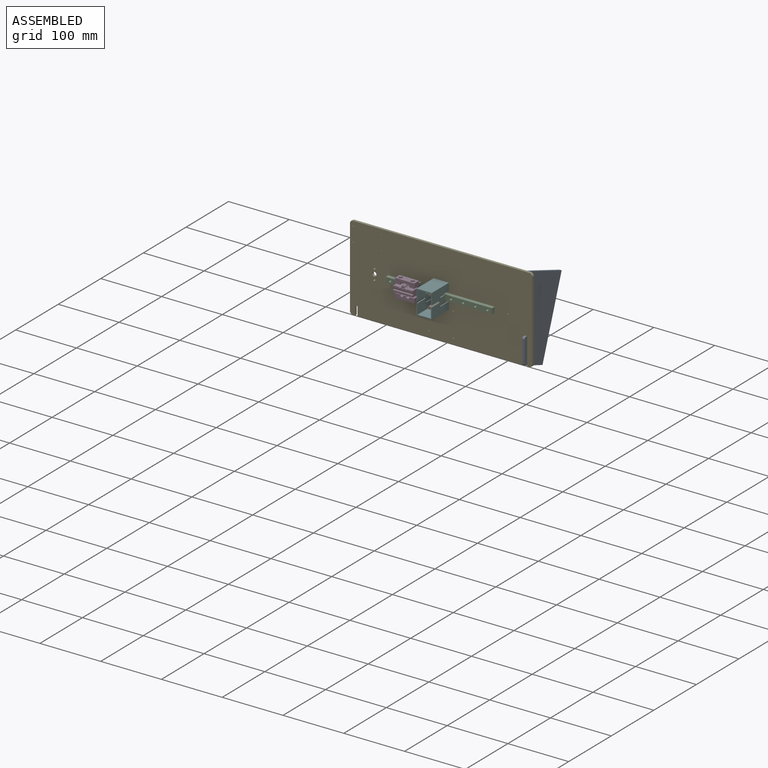
[diagram: assembled view]
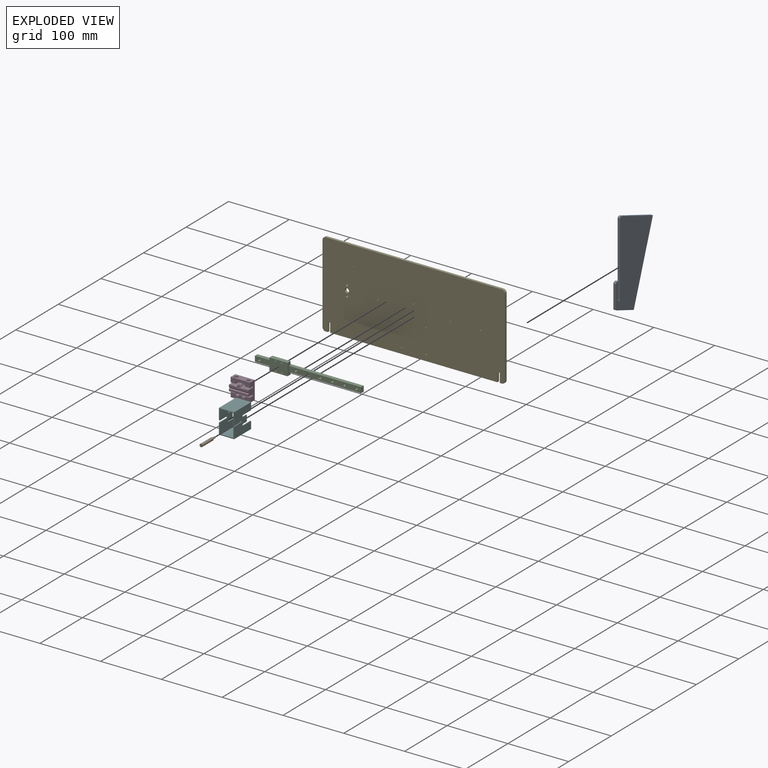
[diagram: exploded view]
GUIDED TOUR — MATED ASSEMBLY WITH SUBASSEMBLIES (Onshape document 30856ecc9b5a88bcb9cef74d, AutoMate assembly 30856ecc9b5a88bcb9cef74d_fe5a6556301621996acbb05d_f79fbb6f6f6875864b22d463_default)

This assembly has 8 component occurrences arranged in 7 top-level units: 6 individual components plus 1 subassembly (S0). The tour has two levels: first the top level, where each subassembly is treated as one rigid unit; then each subassembly is toured internally in its own section (nesting deeper than one subassembly level is flattened into its subassembly's section).

Components are labeled P0..P7 across the whole record; subassembly units are labeled S0..S0. A mate is a constraint between two units; its type names the relative motion it leaves free:
  CYLINDRICAL — leaves both rotation about and translation along the listed axis free,
  FASTENED — locks the two components together rigidly (no relative motion),
  PLANAR — leaves sliding in the plane through the listed point (normal = the listed direction) and rotation about that normal free,
  SLIDER — leaves translation along the listed axis free.
Axis/direction vectors are unit vectors and 'through' points are millimeter coordinates, both in the assembly's world frame.

TOP-LEVEL MATES (between units; each subassembly's internal mates are listed in its own section)
  1. PLANAR "Planar 2": P4 <-> S0, direction (0.000, 1.000, 0.000) through (-46.10, -9.00, -0.02) mm
  2. FASTENED "Fastened 2": P7 <-> P5, direction (0.000, 1.000, 0.000) through (0.00, 4.00, 10.00) mm
  3. PLANAR "Planar 5": P0 <-> P5, direction (0.000, 0.000, 1.000) through (139.42, 2.00, -55.00) mm
  4. CYLINDRICAL "Cylindrical 2": P5 <-> S0, axis (0.000, -1.000, 0.000) through (-60.00, 0.00, 0.00) mm
  5. CYLINDRICAL "Cylindrical 4": P4 <-> S0, axis (0.000, -1.000, 0.000) through (-51.10, -10.00, -7.50) mm
  6. PLANAR "Planar 1": S0 <-> P5, direction (0.000, 1.000, 0.000) through (-20.00, 0.00, 0.00) mm
  7. CYLINDRICAL "Cylindrical 3": P4 <-> S0, axis (0.000, 1.000, 0.000) through (-41.10, -9.00, 7.50) mm
  8. CYLINDRICAL "Cylindrical 1": S0 <-> P5, axis (0.000, 1.000, 0.000) through (0.00, 0.00, 0.00) mm
  9. FASTENED "Fastened 3": P1 <-> P5, direction (0.000, 1.000, 0.000) through (0.00, 4.00, -10.00) mm
  10. PLANAR "Planar 3": P6 <-> P5, direction (0.000, 1.000, 0.000) through (7.77, 0.00, -14.96) mm
  11. PLANAR "Planar 4": P0 <-> P5, direction (0.000, -1.000, 0.000) through (139.42, 4.00, 5.36) mm

TOP-LEVEL ASSEMBLY ORDER
  1. P7 — the base component [order verified]
  2. P5 [order verified]
  3. P1 [order verified]
  4. S0 [order verified]
  5. P4 [order verified]
  6. P6 [order verified]
  7. P0 [order verified]
Order-tag legend:
  [order verified] — this step's position reverses a verified removal order: the component was checked to insert without passing through the ones already placed.

Of the 8 component occurrences, 6 carry the full construction recipe — the FeatureScript program that regenerates the part's solid from scratch; the rest are supplied as boundary geometry only. Each toured unit is shown spotlighted twice — assembled, then exploded with a leader line back to its socket (green = recipe-attached component, orange = geometry-only, blue = subassembly unit; the rest desaturated gray).
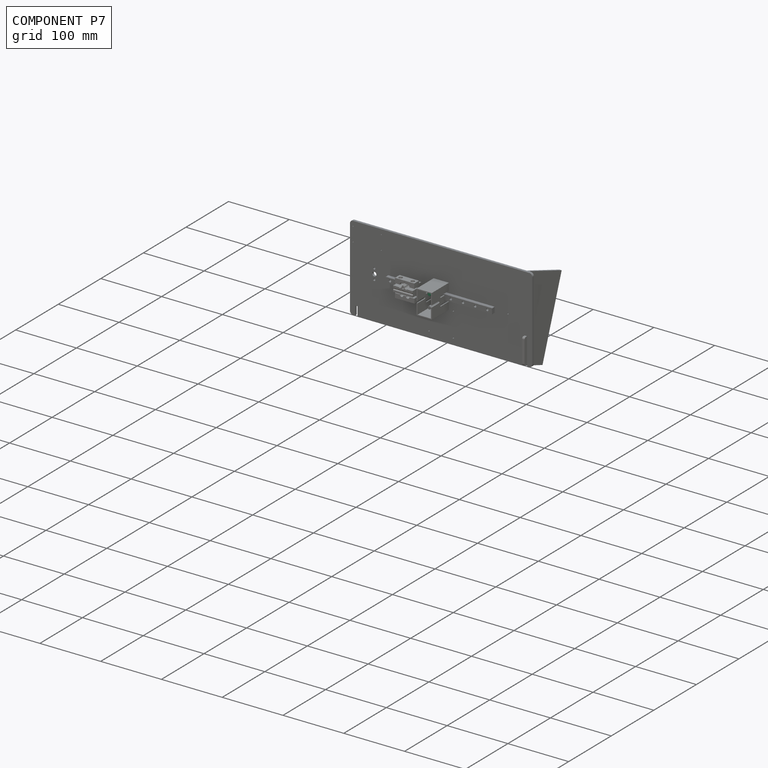
[diagram: component P7 — assembled]
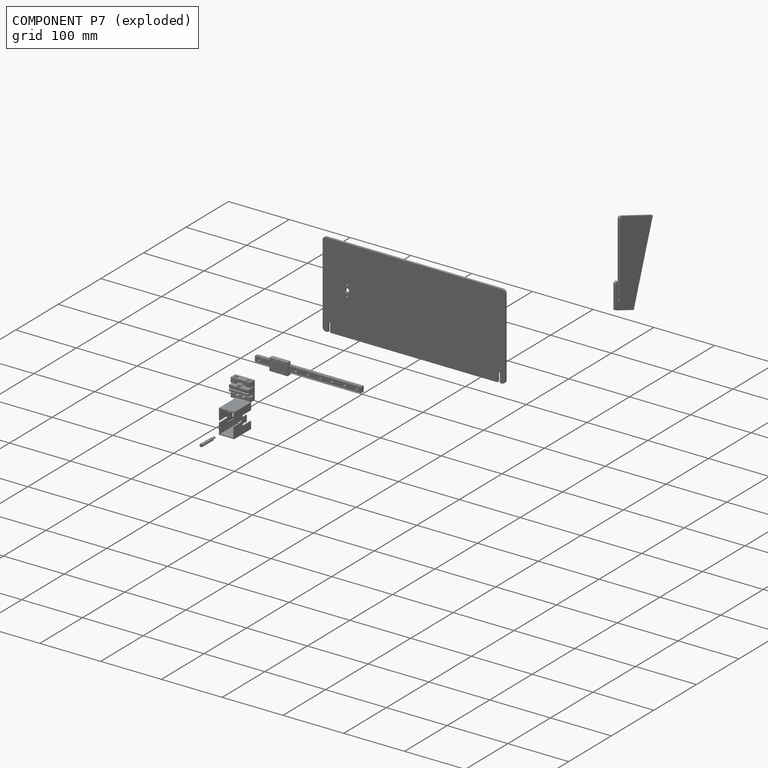
[diagram: component P7 — exploded]
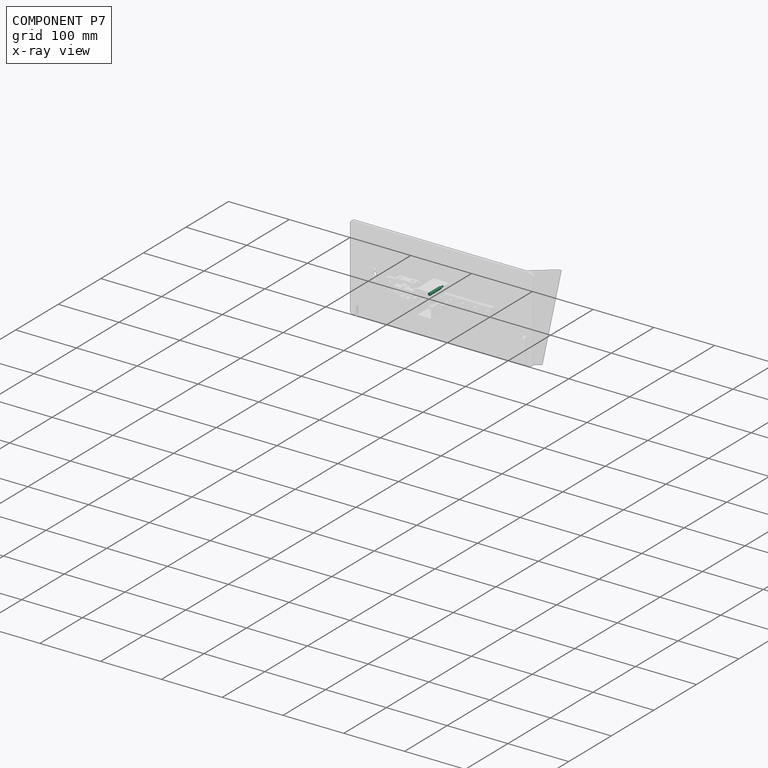
[diagram: component P7 — x-ray view]
COMPONENT P7 — same part as P1 (CADFS 00918046); its construction recipe is shown at P1.
Held by: FASTENED mate "Fastened 2" to P5.
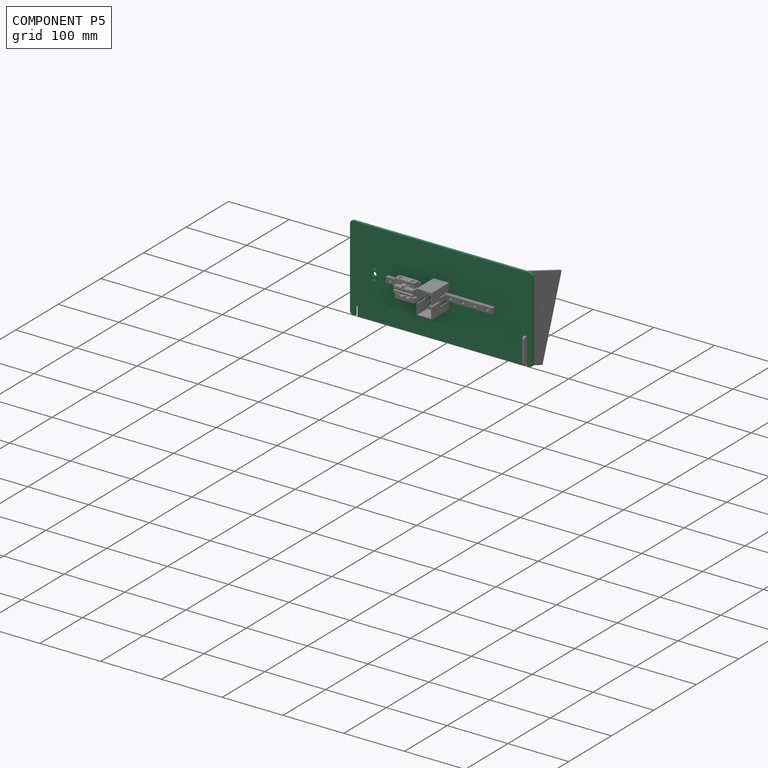
[diagram: component P5 — assembled]
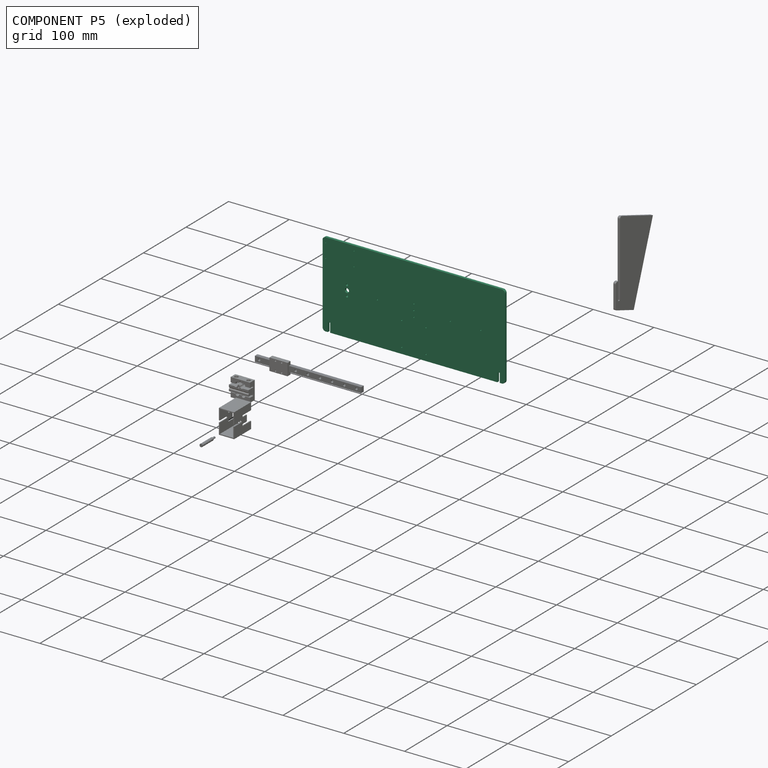
[diagram: component P5 — exploded]
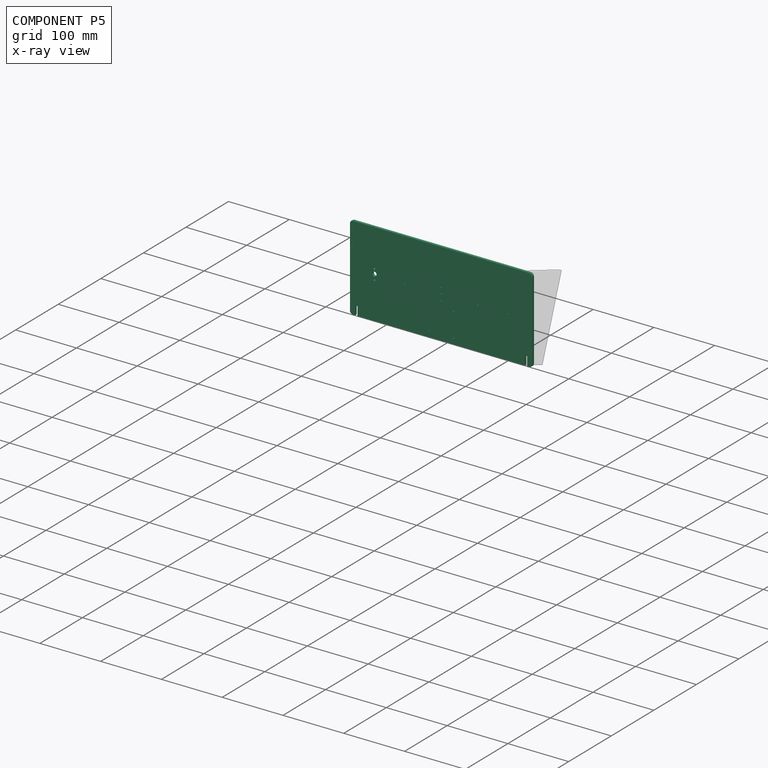
[diagram: component P5 — x-ray view]
COMPONENT P5 — recipe-attached (CADFS 00915259, mesh-verified: the recipe's output STEP matches this component's geometry to below the mesh-comparison resolution (tessellation chordal tolerance ~0.497 mm)).
Held by: FASTENED mate "Fastened 2" to P7; PLANAR mate "Planar 5" to P0; CYLINDRICAL mate "Cylindrical 2" to P2; PLANAR mate "Planar 1" to P2; CYLINDRICAL mate "Cylindrical 1" to P2; FASTENED mate "Fastened 3" to P1; PLANAR mate "Planar 3" to P6; PLANAR mate "Planar 4" to P0.
Construction recipe (FeatureScript — the CAD program that rebuilds this solid; sketch coordinates are in the units given by the * unit suffixes, e.g. mm):

FeatureScript 1511;
import(path : "onshape/std/geometry.fs", version : "1511.0");
import(path : "onshape/std/common.fs", version : "1511.0");
const mm = millimeter;
const VERTEX = EntityType.VERTEX;
const EDGE = EntityType.EDGE;
const FACE = EntityType.FACE;
const BODY = EntityType.BODY;
function v(x, y){return vector(x, y);}
function OD(order){return orderDisambiguation(order);}
function OSD(set){return originalSetDisambiguation(set);}
function TD(topology){return topologyDisambiguation(topology);}
function TDD(query){return trueDependencyDisambiguation(query);}
function sQuery(a, b, c) {return sketchEntityQuery(a, b, c);}

annotation { "Feature Type Name" : "Feature", "Feature Type Description" : "" }
export const myFeature = defineFeature(function(context is Context, id is Id, definition is map)
    precondition{}
    {
        {
            var Q0;
            Q0=qCreatedBy(makeId("Front.planeOp"),FACE);
            var sketch = newSketch(context, id + "F0", { "sketchPlane" : qUnion([Q0])});
            skLineSegment(sketch, "E0.bottom", {"start": v(-150, 70) * mm, "end": v(150, 70) * mm});
            skLineSegment(sketch, "E0.top", {"start": v(-150, -70) * mm, "end": v(150, -70) * mm});
            skLineSegment(sketch, "E0.left", {"start": v(-150, 70) * mm, "end": v(-150, -70) * mm});
            skLineSegment(sketch, "E0.right", {"start": v(150, 70) * mm, "end": v(150, -70) * mm});
            skSolve(sketch);
        }
        {
            var Q0;
            Q0=makeQuery(id+"F0.imprint","IMPRINT",FACE,{"disambiguationData":[TD([[makeQuery(id+"F0.imprint","IMPRINT",EDGE,{"derivedFrom":sQuery(id+"F0.wireOp",EDGE,"E0.bottom")}),-1.0]])]});
            extrude(context, id + "F1", {"entities" : qUnion([Q0]), "depth" : 4 * mm, "offsetDistance" : 25 * mm});
        }
        {
            var Q0;
            Q0=makeQuery(id+"F1.opExtrude","SWEPT_EDGE",EDGE,{"disambiguationData":[OSD([sQuery(id+"F0.wireOp",EDGE,"E0.bottom"),sQuery(id+"F0.wireOp",EDGE,"E0.right")])]});
            var Q1;
            Q1=makeQuery(id+"F1.opExtrude","SWEPT_EDGE",EDGE,{"disambiguationData":[OSD([sQuery(id+"F0.wireOp",EDGE,"E0.top"),sQuery(id+"F0.wireOp",EDGE,"E0.right")])]});
            var Q2;
            Q2=makeQuery(id+"F1.opExtrude","SWEPT_EDGE",EDGE,{"disambiguationData":[OSD([sQuery(id+"F0.wireOp",EDGE,"E0.top"),sQuery(id+"F0.wireOp",EDGE,"E0.left")])]});
            var Q3;
            Q3=makeQuery(id+"F1.opExtrude","SWEPT_EDGE",EDGE,{"disambiguationData":[OSD([sQuery(id+"F0.wireOp",EDGE,"E0.bottom"),sQuery(id+"F0.wireOp",EDGE,"E0.left")])]});
            fillet(context, id + "F2", {"entities" : qUnion([Q0, Q1, Q2, Q3]), "radius" : 5 * mm, "tangentPropagation" : true, "allowEdgeOverflow" : false});
        }
        {
            var Q0;
            Q0=makeQuery(id+"F1.opExtrude","CAP_FACE",FACE,{"disambiguationData":[OSD([sQuery(id+"F0.wireOp",EDGE,"E0.bottom"),sQuery(id+"F0.wireOp",EDGE,"E0.top"),sQuery(id+"F0.wireOp",EDGE,"E0.left"),sQuery(id+"F0.wireOp",EDGE,"E0.right")])],"isStart":false});
            var sketch = newSketch(context, id + "F3", { "sketchPlane" : qUnion([Q0])});
            skLineSegment(sketch, "E1", {"start": v(-157.8, 0) * mm, "end": v(143.36, 0) * mm, "construction": true});
            skCircle(sketch, "E2", {"center": v(0, 0) * mm, "radius": 1 * mm});
            skCircle(sketch, "E3", {"center": v(60, 0) * mm, "radius": 1 * mm});
            skCircle(sketch, "E4", {"center": v(-60, 0) * mm, "radius": 1 * mm});
            skCircle(sketch, "E5", {"center": v(-110, 0) * mm, "radius": 3.5 * mm});
            skCircle(sketch, "E6", {"center": v(110, 0) * mm, "radius": 1 * mm});
            skCircle(sketch, "E7", {"center": v(-110, 8.5) * mm, "radius": 1.75 * mm});
            skCircle(sketch, "E8", {"center": v(-110, -8.5) * mm, "radius": 1.75 * mm});
            skLineSegment(sketch, "E9.bottom", {"start": v(-141.5, -70) * mm, "end": v(-137.5, -70) * mm});
            skLineSegment(sketch, "E9.top", {"start": v(-141.5, -55) * mm, "end": v(-137.5, -55) * mm});
            skLineSegment(sketch, "E9.left", {"start": v(-141.5, -70) * mm, "end": v(-141.5, -55) * mm});
            skLineSegment(sketch, "E9.right", {"start": v(-137.5, -70) * mm, "end": v(-137.5, -55) * mm});
            skLineSegment(sketch, "E10.bottom", {"start": v(141.5, -70) * mm, "end": v(137.5, -70) * mm});
            skLineSegment(sketch, "E10.top", {"start": v(141.5, -55) * mm, "end": v(137.5, -55) * mm});
            skLineSegment(sketch, "E10.left", {"start": v(141.5, -70) * mm, "end": v(141.5, -55) * mm});
            skLineSegment(sketch, "E10.right", {"start": v(137.5, -70) * mm, "end": v(137.5, -55) * mm});
            skLineSegment(sketch, "E11.bottom", {"start": v(-145, 62) * mm, "end": v(-98.5, 62) * mm, "construction": true});
            skLineSegment(sketch, "E11.top", {"start": v(-145, 38.7) * mm, "end": v(-98.5, 38.7) * mm, "construction": true});
            skLineSegment(sketch, "E11.left", {"start": v(-145, 62) * mm, "end": v(-145, 38.7) * mm, "construction": true});
            skLineSegment(sketch, "E11.right", {"start": v(-98.5, 62) * mm, "end": v(-98.5, 38.7) * mm, "construction": true});
            skCircle(sketch, "E12", {"center": v(-145, 62) * mm, "radius": 0.75 * mm});
            skCircle(sketch, "E13", {"center": v(-98.5, 62) * mm, "radius": 0.75 * mm});
            skCircle(sketch, "E14", {"center": v(-145, 38.7) * mm, "radius": 0.75 * mm});
            skCircle(sketch, "E15", {"center": v(-98.5, 38.7) * mm, "radius": 0.75 * mm});
            skLineSegment(sketch, "E16.bottom", {"start": v(20, -20) * mm, "end": v(-20, -20) * mm, "construction": true});
            skLineSegment(sketch, "E16.top", {"start": v(20, -60) * mm, "end": v(-20, -60) * mm, "construction": true});
            skLineSegment(sketch, "E16.left", {"start": v(20, -20) * mm, "end": v(20, -60) * mm, "construction": true});
            skLineSegment(sketch, "E16.right", {"start": v(-20, -20) * mm, "end": v(-20, -60) * mm, "construction": true});
            skCircle(sketch, "E17", {"center": v(-20, -20) * mm, "radius": 1 * mm});
            skCircle(sketch, "E18", {"center": v(20, -20) * mm, "radius": 1 * mm});
            skCircle(sketch, "E19", {"center": v(20, -60) * mm, "radius": 1 * mm});
            skCircle(sketch, "E20", {"center": v(-20, -60) * mm, "radius": 1 * mm});
            skSolve(sketch);
        }
        {
            var Q0;
            Q0 = qSketchRegion(id + "F3", true);
            extrude(context, id + "F4", {"entities" : qUnion([Q0]), "operationType" : NewBodyOperationType.REMOVE, "endBound" : BoundingType.THROUGH_ALL, "oppositeDirection" : true, "depth" : 25 * mm, "offsetDistance" : 25 * mm});
        }
        {
            var Q0;
            Q0=makeQuery(id+"F1.opExtrude","CAP_FACE",FACE,{"disambiguationData":[OSD([sQuery(id+"F0.wireOp",EDGE,"E0.bottom"),sQuery(id+"F0.wireOp",EDGE,"E0.top"),sQuery(id+"F0.wireOp",EDGE,"E0.left"),sQuery(id+"F0.wireOp",EDGE,"E0.right")])],"isStart":false});
            var sketch = newSketch(context, id + "F5", { "sketchPlane" : qUnion([Q0])});
            skLineSegment(sketch, "E21", {"start": v(0, 35.63) * mm, "end": v(0, -33.32) * mm, "construction": true});
            skCircle(sketch, "E22", {"center": v(0, 10) * mm, "radius": 1 * mm});
            skCircle(sketch, "E23", {"center": v(0, -10) * mm, "radius": 1 * mm});
            skSolve(sketch);
        }
        {
            var Q0;
            Q0 = qSketchRegion(id + "F5", true);
            extrude(context, id + "F6", {"entities" : qUnion([Q0]), "operationType" : NewBodyOperationType.REMOVE, "endBound" : BoundingType.THROUGH_ALL, "oppositeDirection" : true, "depth" : 25 * mm, "offsetDistance" : 25 * mm});
        }
    });
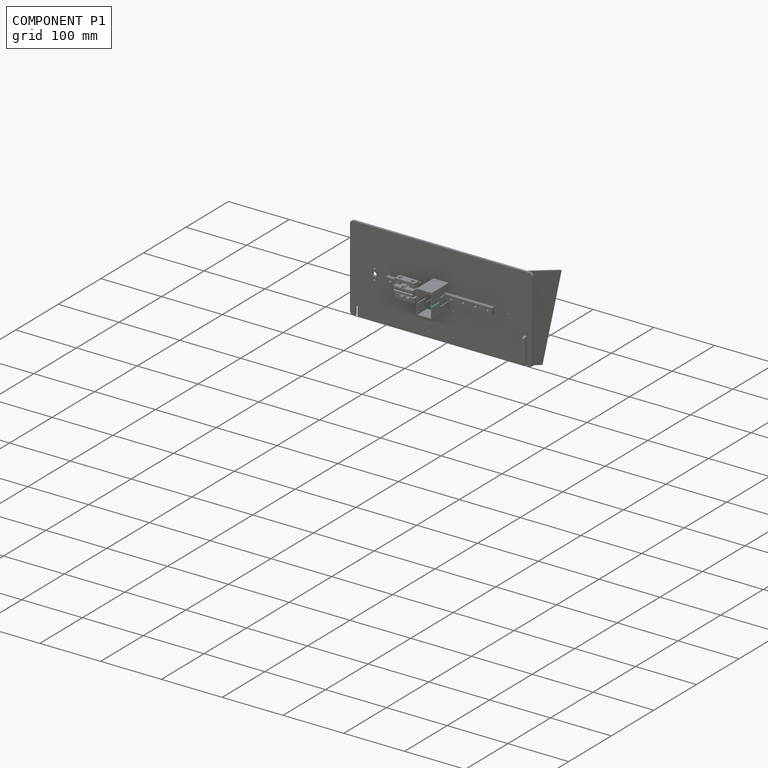
[diagram: component P1 — assembled]
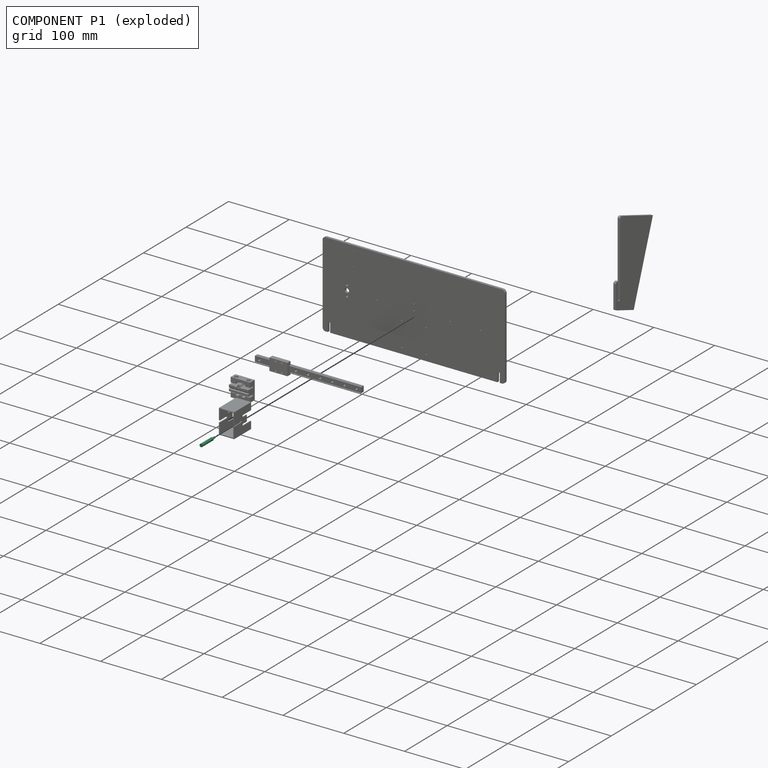
[diagram: component P1 — exploded]
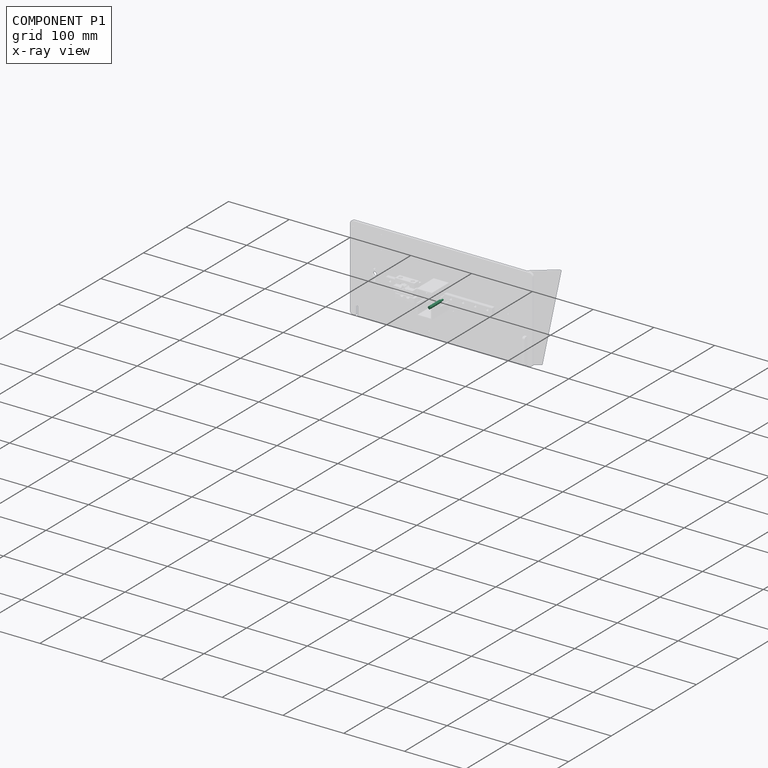
[diagram: component P1 — x-ray view]
COMPONENT P1 — recipe-attached (CADFS 00918046, mesh-verified: the recipe's output STEP matches this component's geometry to below the mesh-comparison resolution (tessellation chordal tolerance ~0.0492 mm)).
Held by: FASTENED mate "Fastened 3" to P5.
Construction recipe (FeatureScript — the CAD program that rebuilds this solid; sketch coordinates are in the units given by the * unit suffixes, e.g. mm):

FeatureScript 1511;
import(path : "onshape/std/geometry.fs", version : "1511.0");
import(path : "onshape/std/common.fs", version : "1511.0");
const mm = millimeter;
const VERTEX = EntityType.VERTEX;
const EDGE = EntityType.EDGE;
const FACE = EntityType.FACE;
const BODY = EntityType.BODY;
function v(x, y){return vector(x, y);}
function OD(order){return orderDisambiguation(order);}
function OSD(set){return originalSetDisambiguation(set);}
function TD(topology){return topologyDisambiguation(topology);}
function TDD(query){return trueDependencyDisambiguation(query);}
function sQuery(a, b, c) {return sketchEntityQuery(a, b, c);}

annotation { "Feature Type Name" : "Feature", "Feature Type Description" : "" }
export const myFeature = defineFeature(function(context is Context, id is Id, definition is map)
    precondition{}
    {
        {
            var Q0;
            Q0=qCreatedBy(makeId("Front.planeOp"),FACE);
            var sketch = newSketch(context, id + "F0", { "sketchPlane" : qUnion([Q0])});
            skCircle(sketch, "E0", {"center": v(0, 0) * mm, "radius": 2.5 * mm});
            skSolve(sketch);
        }
        {
            var Q0;
            Q0 = qSketchRegion(id + "F0", true);
            extrude(context, id + "F1", {"entities" : qUnion([Q0]), "depth" : 32 * mm, "offsetDistance" : 25 * mm});
        }
        {
            var Q0;
            Q0=makeQuery(id+"F1.opExtrude","CAP_FACE",FACE,{"disambiguationData":[OSD([sQuery(id+"F0.wireOp",EDGE,"E0")])],"isStart":true});
            var sketch = newSketch(context, id + "F2", { "sketchPlane" : qUnion([Q0])});
            skCircle(sketch, "E1", {"center": v(0, 0) * mm, "radius": 1.5 * mm});
            skSolve(sketch);
        }
        {
            var Q0;
            Q0=makeQuery(id+"F2.imprint","IMPRINT",FACE,{"disambiguationData":[TD([[makeQuery(id+"F2.imprint","IMPRINT",EDGE,{"derivedFrom":sQuery(id+"F2.wireOp",EDGE,"E1")}),-1.0]])]});
            extrude(context, id + "F3", {"entities" : qUnion([Q0]), "operationType" : NewBodyOperationType.REMOVE, "oppositeDirection" : true, "depth" : 6 * mm, "offsetDistance" : 25 * mm});
        }
    });
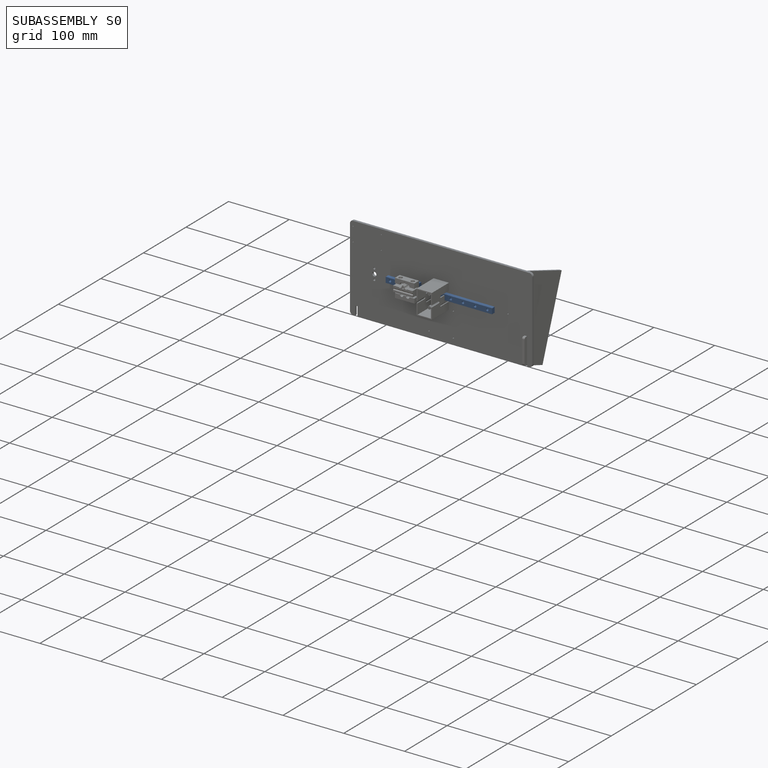
[diagram: subassembly S0 — assembled]
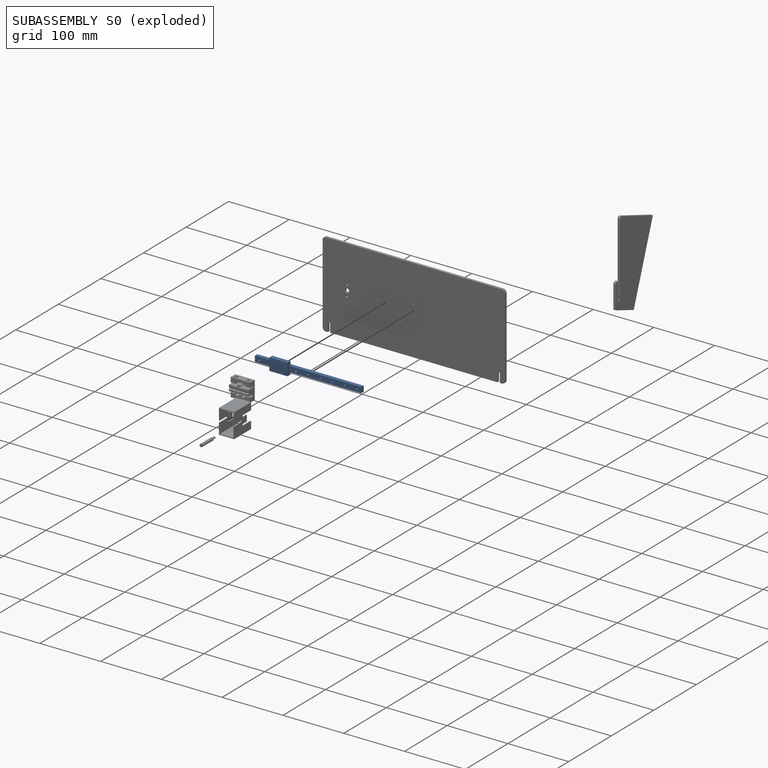
[diagram: subassembly S0 — exploded]
SUBASSEMBLY S0 — 2 components (P2, P3), of which 2 recipe-attached; toured below.
Held by: PLANAR mate "Planar 2" to P4; CYLINDRICAL mate "Cylindrical 2" to P5; CYLINDRICAL mate "Cylindrical 4" to P4; PLANAR mate "Planar 1" to P5; CYLINDRICAL mate "Cylindrical 3" to P4; CYLINDRICAL mate "Cylindrical 1" to P5.
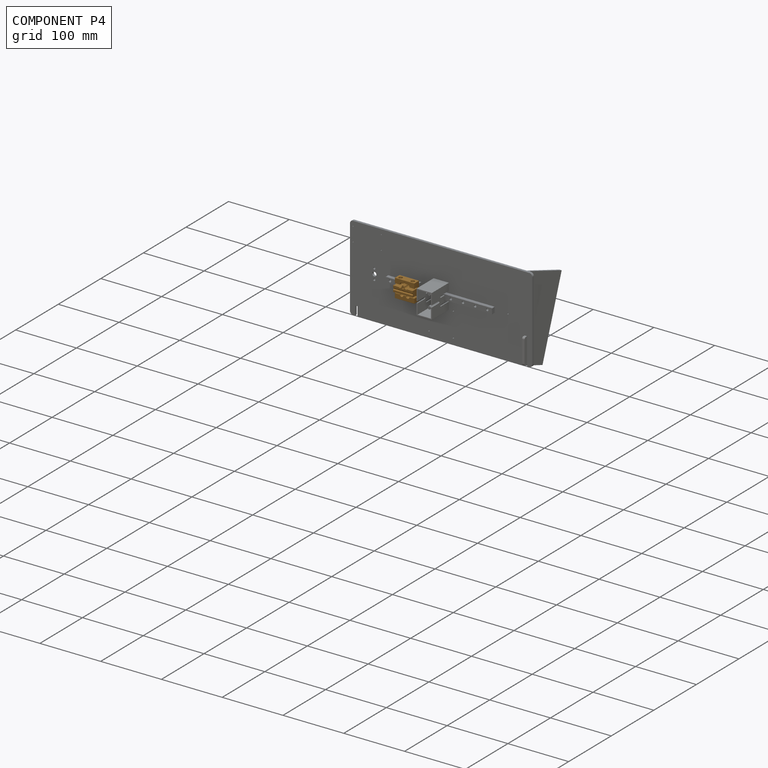
[diagram: component P4 — assembled]
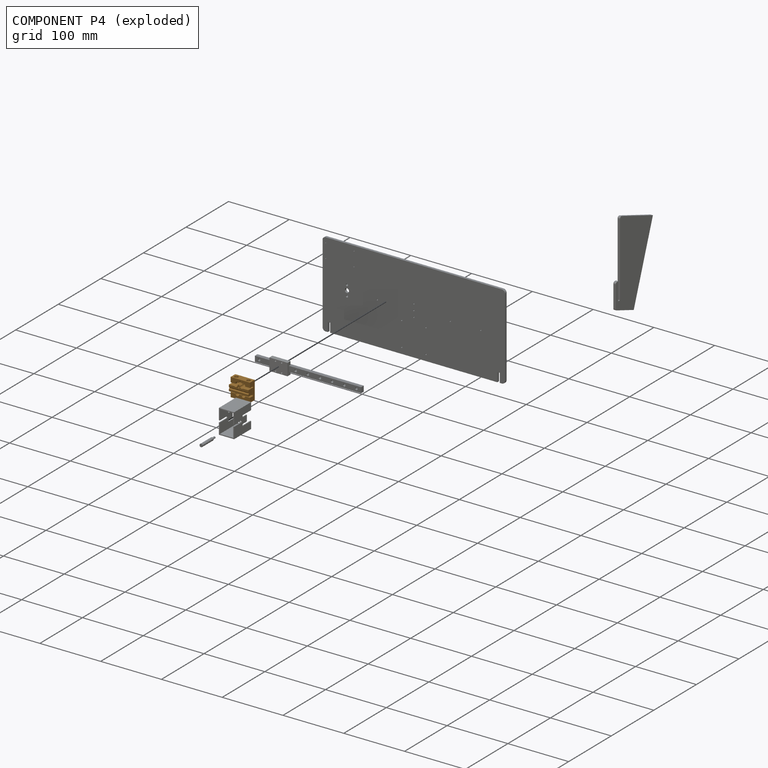
[diagram: component P4 — exploded]
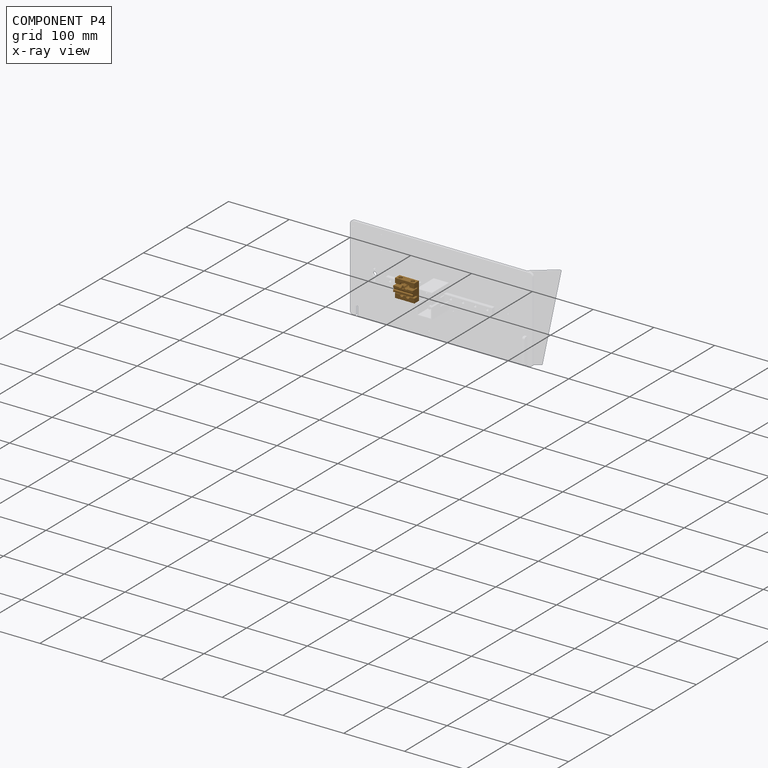
[diagram: component P4 — x-ray view]
COMPONENT P4 — geometry summary (no construction recipe available for this part):
  bounding box: 32.0 x 30.0 x 15.0 mm
  B-rep topology: 1 solid, 56 faces, 298 edges
  volume: 8891 mm^3 (62% of its bounding box)
  symmetry: mirror-symmetric across its x mid-plane
Held by: PLANAR mate "Planar 2" to P2; CYLINDRICAL mate "Cylindrical 4" to P2; CYLINDRICAL mate "Cylindrical 3" to P2.
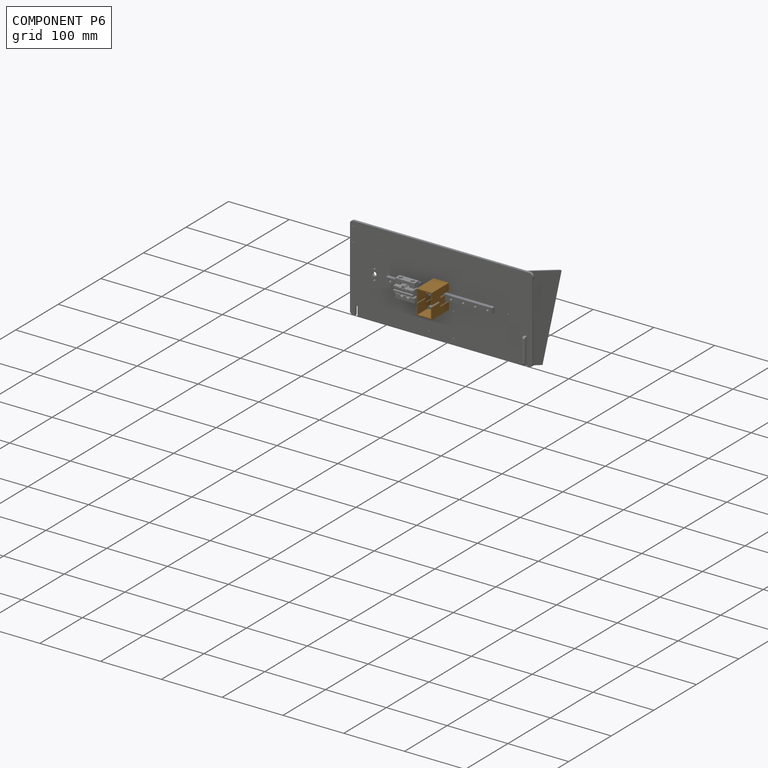
[diagram: component P6 — assembled]
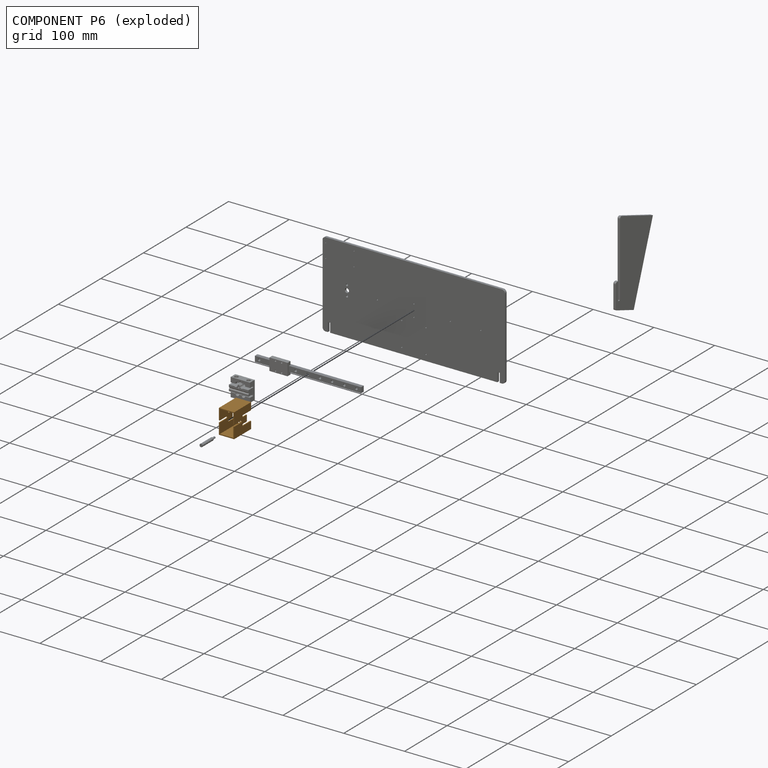
[diagram: component P6 — exploded]
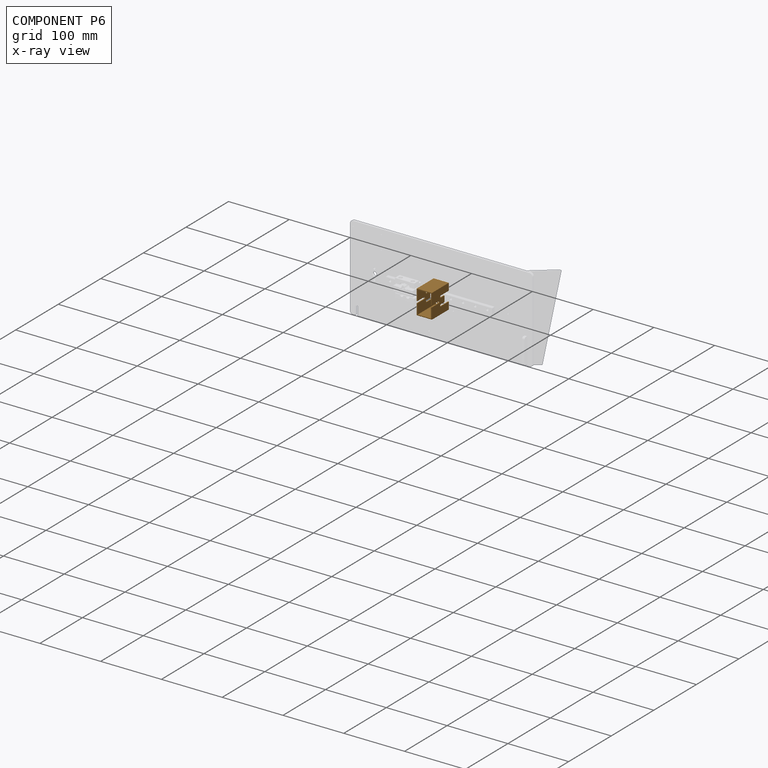
[diagram: component P6 — x-ray view]
COMPONENT P6 — geometry summary (no construction recipe available for this part):
  bounding box: 40.0 x 40.0 x 25.0 mm
  B-rep topology: 1 solid, 44 faces, 272 edges
  volume: 6775 mm^3 (17% of its bounding box)
  symmetry: 2-fold rotationally symmetric about the z axis; mirror-symmetric across its x mid-plane, y mid-plane
Held by: PLANAR mate "Planar 3" to P5.
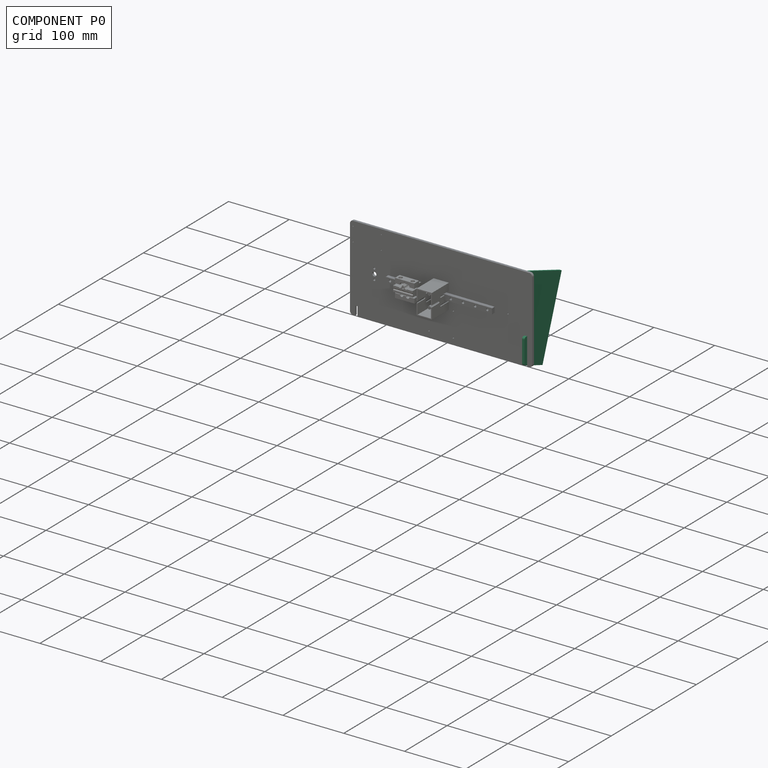
[diagram: component P0 — assembled]
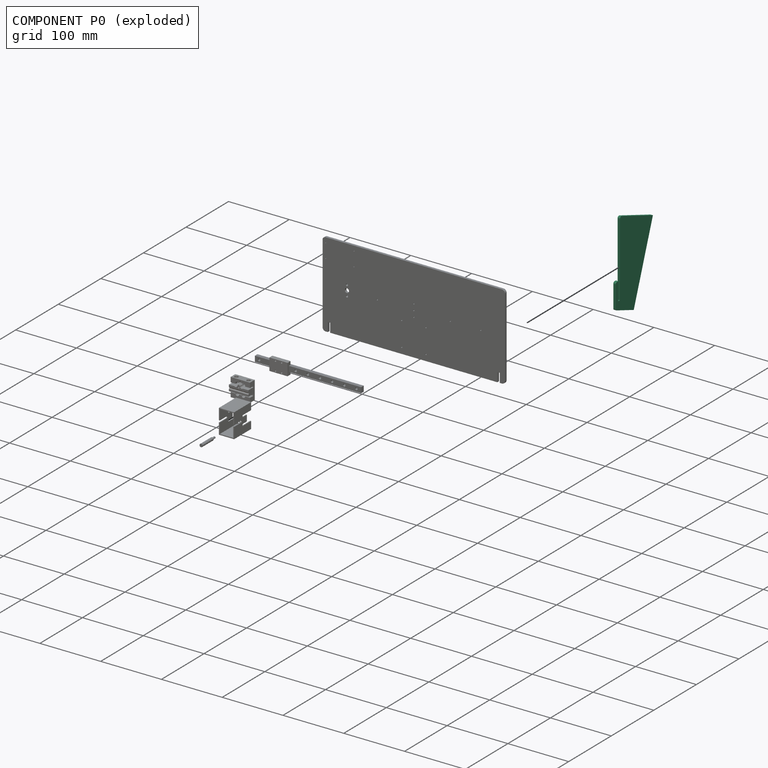
[diagram: component P0 — exploded]
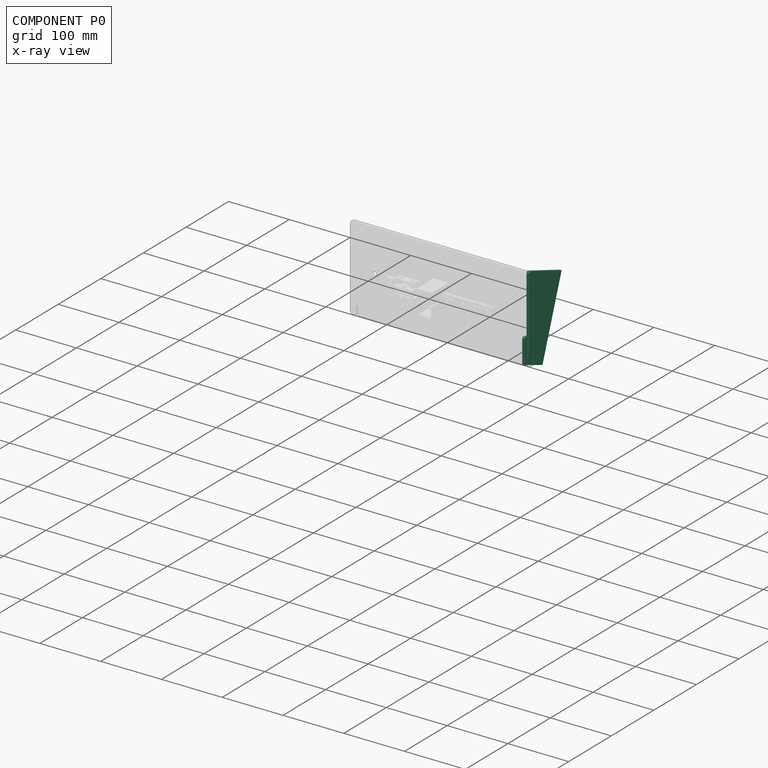
[diagram: component P0 — x-ray view]
COMPONENT P0 — recipe-attached (CADFS 00915260, mesh-verified: the recipe's output STEP matches this component's geometry to below the mesh-comparison resolution (tessellation chordal tolerance ~0.232 mm)).
Held by: PLANAR mate "Planar 5" to P5; PLANAR mate "Planar 4" to P5.
Construction recipe (FeatureScript — the CAD program that rebuilds this solid; sketch coordinates are in the units given by the * unit suffixes, e.g. mm):

FeatureScript 1511;
import(path : "onshape/std/geometry.fs", version : "1511.0");
import(path : "onshape/std/common.fs", version : "1511.0");
const mm = millimeter;
const VERTEX = EntityType.VERTEX;
const EDGE = EntityType.EDGE;
const FACE = EntityType.FACE;
const BODY = EntityType.BODY;
function v(x, y){return vector(x, y);}
function OD(order){return orderDisambiguation(order);}
function OSD(set){return originalSetDisambiguation(set);}
function TD(topology){return topologyDisambiguation(topology);}
function TDD(query){return trueDependencyDisambiguation(query);}
function sQuery(a, b, c) {return sketchEntityQuery(a, b, c);}

annotation { "Feature Type Name" : "Feature", "Feature Type Description" : "" }
export const myFeature = defineFeature(function(context is Context, id is Id, definition is map)
    precondition{}
    {
        {
            var Q0;
            Q0=qCreatedBy(makeId("Front.planeOp"),FACE);
            var sketch = newSketch(context, id + "F0", { "sketchPlane" : qUnion([Q0])});
            skLineSegment(sketch, "E0", {"start": v(-131.56, 0) * mm, "end": v(0, 0) * mm});
            skLineSegment(sketch, "E1", {"start": v(0, 0) * mm, "end": v(0, 82.24) * mm});
            skLineSegment(sketch, "E2", {"start": v(0, 82.24) * mm, "end": v(-117.46, 39.49) * mm});
            skLineSegment(sketch, "E3", {"start": v(-117.46, 39.49) * mm, "end": v(-118.83, 43.25) * mm});
            skLineSegment(sketch, "E4", {"start": v(-118.83, 43.25) * mm, "end": v(-90.64, 53.5) * mm});
            skLineSegment(sketch, "E5", {"start": v(-90.64, 53.5) * mm, "end": v(-92.7, 59.15) * mm});
            skLineSegment(sketch, "E6", {"start": v(-92.7, 59.15) * mm, "end": v(-131.56, 45) * mm});
            skLineSegment(sketch, "E7", {"start": v(-131.56, 45) * mm, "end": v(-131.56, 0) * mm});
            skLineSegment(sketch, "E8", {"start": v(-117.46, 39.49) * mm, "end": v(-131.56, 34.36) * mm, "construction": true});
            skSolve(sketch);
        }
        {
            var Q0;
            Q0 = qSketchRegion(id + "F0", true);
            extrude(context, id + "F1", {"entities" : qUnion([Q0]), "depth" : 4 * mm, "offsetDistance" : 25 * mm});
        }
        {
            var Q0;
            Q0=makeQuery(id+"F1.opExtrude","SWEPT_EDGE",EDGE,{"disambiguationData":[OSD([sQuery(id+"F0.wireOp",EDGE,"E6"),sQuery(id+"F0.wireOp",EDGE,"E7")])]});
            var Q1;
            Q1=makeQuery(id+"F1.opExtrude","SWEPT_EDGE",EDGE,{"disambiguationData":[OSD([sQuery(id+"F0.wireOp",EDGE,"E1"),sQuery(id+"F0.wireOp",EDGE,"E2")])]});
            var Q2;
            Q2=makeQuery(id+"F1.opExtrude","SWEPT_EDGE",EDGE,{"disambiguationData":[OSD([sQuery(id+"F0.wireOp",EDGE,"E5"),sQuery(id+"F0.wireOp",EDGE,"E6")])]});
            fillet(context, id + "F2", {"entities" : qUnion([Q0, Q1, Q2]), "radius" : 3 * mm, "tangentPropagation" : true, "allowEdgeOverflow" : false});
        }
    });
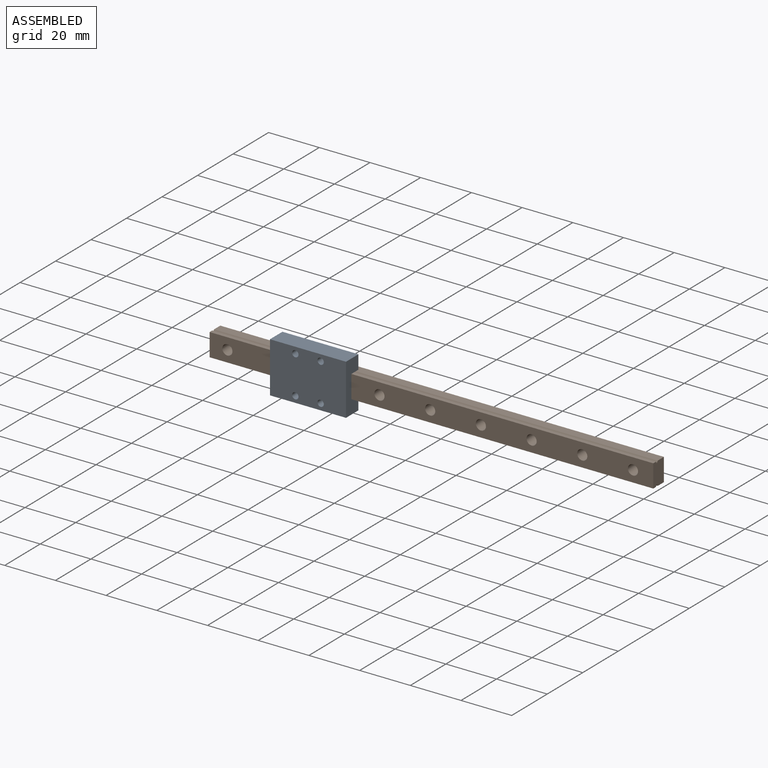
[diagram: subassembly S0 — assembled view]
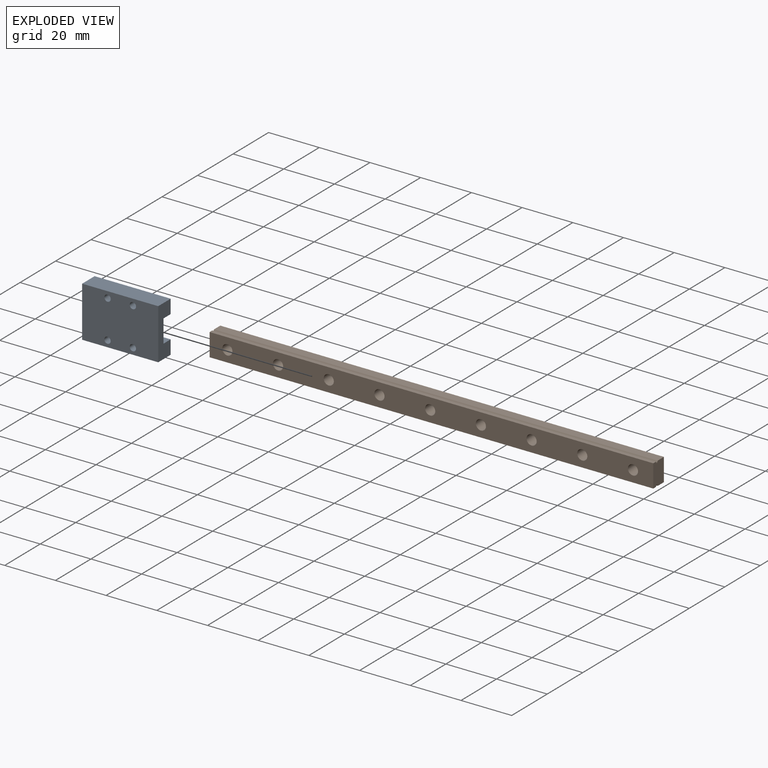
[diagram: subassembly S0 — exploded view]
SUBASSEMBLY S0 TOUR — 2 components, shown here in isolation at its own camera.

INTERNAL MATES
  1. PLANAR "Planar 1": P2 <-> P3, direction (0.000, 1.000, 0.000) through (-61.10, -6.00, 0.00) mm
  2. SLIDER "Slider 1": P3 <-> P2, axis (1.000, 0.000, 0.000) through (88.00, -6.00, -4.50) mm

ASSEMBLY ORDER (within the subassembly)
  1. P3 — the base component [order verified]
  2. P2 [order verified]
Order-tag legend:
  [order verified] — this step's position reverses a verified removal order: the component was checked to insert without passing through the ones already placed.
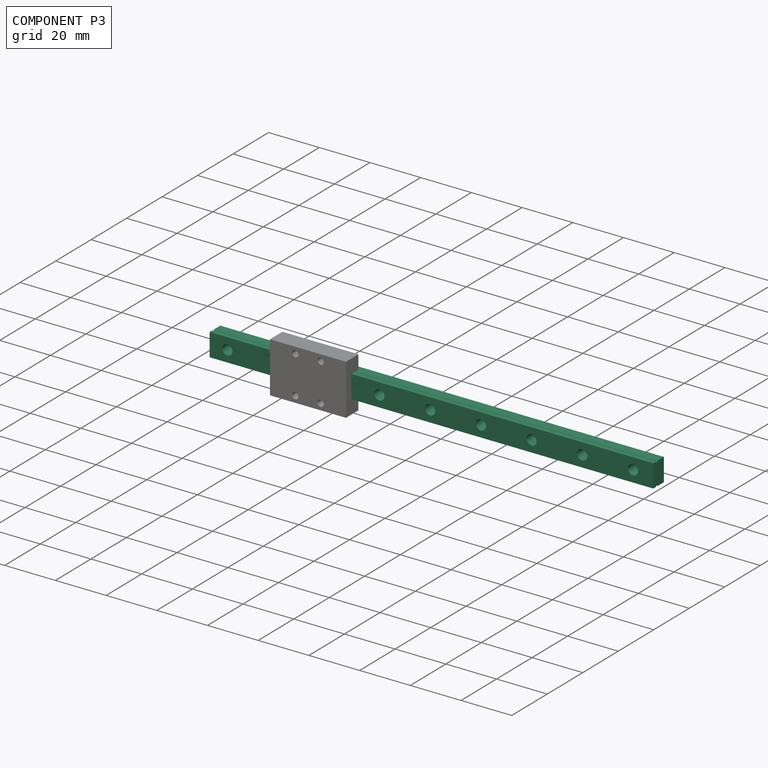
[diagram: component P3 — assembled]
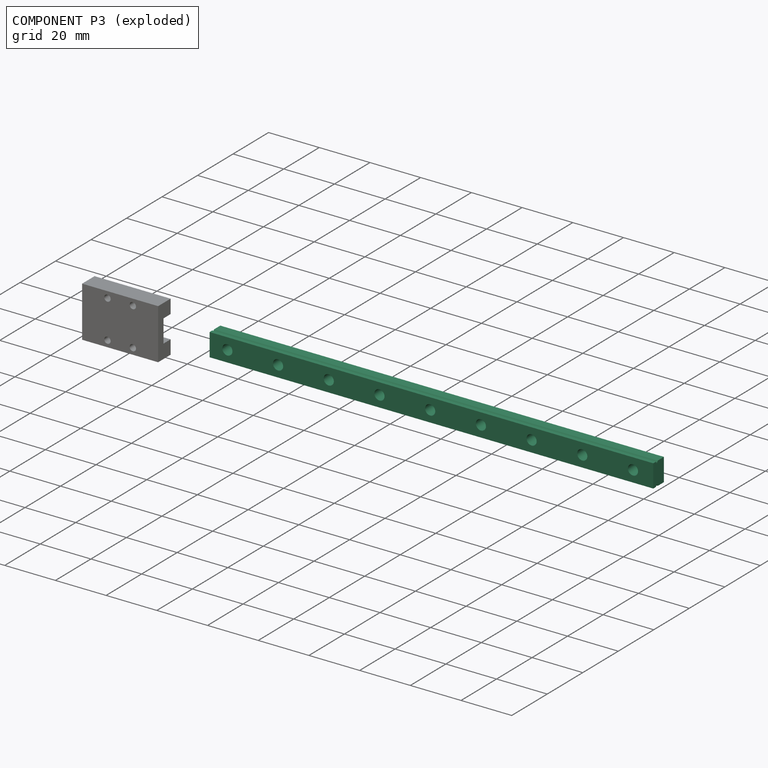
[diagram: component P3 — exploded]
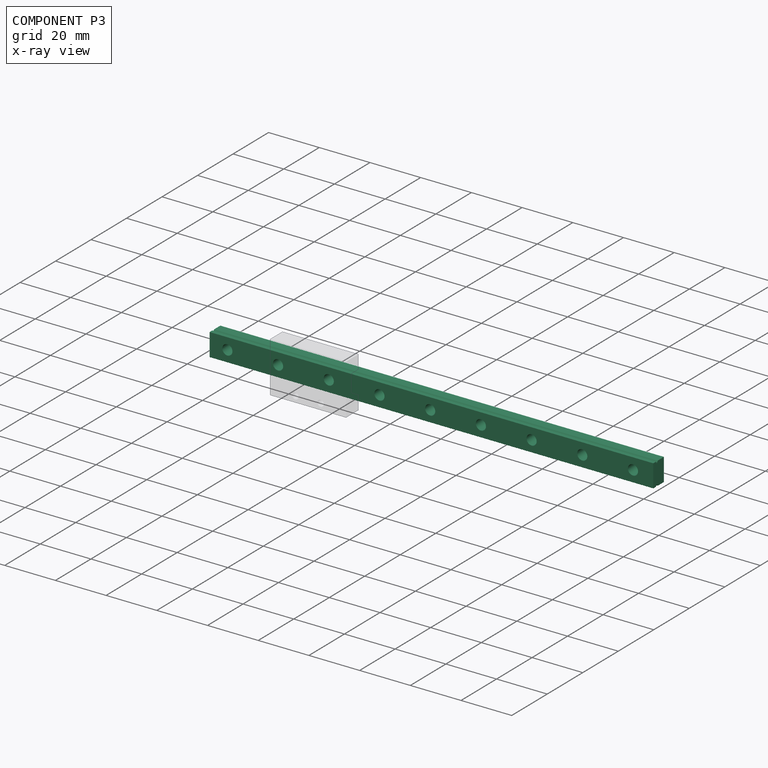
[diagram: component P3 — x-ray view]
COMPONENT P3 — recipe-attached (CADFS 00915665, mesh-verified: the recipe's output STEP matches this component's geometry to below the mesh-comparison resolution (tessellation chordal tolerance ~0.263 mm)).
Held by: PLANAR mate "Planar 1" to P2; SLIDER mate "Slider 1" to P2.
Construction recipe (FeatureScript — the CAD program that rebuilds this solid; sketch coordinates are in the units given by the * unit suffixes, e.g. mm):

FeatureScript 1511;
import(path : "onshape/std/geometry.fs", version : "1511.0");
import(path : "onshape/std/common.fs", version : "1511.0");
const mm = millimeter;
const VERTEX = EntityType.VERTEX;
const EDGE = EntityType.EDGE;
const FACE = EntityType.FACE;
const BODY = EntityType.BODY;
function v(x, y){return vector(x, y);}
function OD(order){return orderDisambiguation(order);}
function OSD(set){return originalSetDisambiguation(set);}
function TD(topology){return topologyDisambiguation(topology);}
function TDD(query){return trueDependencyDisambiguation(query);}
function sQuery(a, b, c) {return sketchEntityQuery(a, b, c);}

annotation { "Feature Type Name" : "Feature", "Feature Type Description" : "" }
export const myFeature = defineFeature(function(context is Context, id is Id, definition is map)
    precondition{}
    {
        {
            var Q0;
            Q0=qCreatedBy(makeId("Front.planeOp"),FACE);
            var sketch = newSketch(context, id + "F0", { "sketchPlane" : qUnion([Q0])});
            skLineSegment(sketch, "E0.bottom", {"start": v(-4.5, 6) * mm, "end": v(4.5, 6) * mm});
            skLineSegment(sketch, "E0.top", {"start": v(-4.5, 0) * mm, "end": v(4.5, 0) * mm});
            skLineSegment(sketch, "E0.left", {"start": v(-4.5, 6) * mm, "end": v(-4.5, 4.5) * mm});
            skLineSegment(sketch, "E0.right", {"start": v(4.5, 6) * mm, "end": v(4.5, 4.5) * mm});
            skLineSegment(sketch, "E1", {"start": v(-15.04, 4) * mm, "end": v(13.15, 4) * mm, "construction": true});
            skLineSegment(sketch, "E2", {"start": v(4.5, 4.5) * mm, "end": v(3.8, 4) * mm});
            skLineSegment(sketch, "E3", {"start": v(3.8, 4) * mm, "end": v(4.5, 3.5) * mm});
            skLineSegment(sketch, "E4", {"start": v(-4.5, 4.5) * mm, "end": v(-3.8, 4) * mm});
            skLineSegment(sketch, "E5", {"start": v(-3.8, 4) * mm, "end": v(-4.5, 3.5) * mm});
            skLineSegment(sketch, "E6.trimOffspring", {"start": v(-4.5, 3.5) * mm, "end": v(-4.5, 0) * mm});
            skLineSegment(sketch, "E7.trimOffspring", {"start": v(4.5, 3.5) * mm, "end": v(4.5, 0) * mm});
            skSolve(sketch);
        }
        {
            var Q0;
            Q0 = qSketchRegion(id + "F0", true);
            extrude(context, id + "F1", {"entities" : qUnion([Q0]), "depth" : 175 * mm, "offsetDistance" : 25 * mm});
        }
        {
            var Q0;
            Q0=makeQuery(id+"F1.opExtrude","SWEPT_FACE",FACE,{"disambiguationData":[OSD([sQuery(id+"F0.wireOp",EDGE,"E0.bottom")])]});
            var sketch = newSketch(context, id + "F2", { "sketchPlane" : qUnion([Q0])});
            skCircle(sketch, "E8", {"center": v(0, -7) * mm, "radius": 2 * mm});
            skCircle(sketch, "E9.1.0.0", {"center": v(0, -27) * mm, "radius": 2 * mm});
            skCircle(sketch, "E9.2.0.0", {"center": v(0, -47) * mm, "radius": 2 * mm});
            skCircle(sketch, "E9.3.0.0", {"center": v(0, -67) * mm, "radius": 2 * mm});
            skCircle(sketch, "E9.4.0.0", {"center": v(0, -87) * mm, "radius": 2 * mm});
            skCircle(sketch, "E9.5.0.0", {"center": v(0, -107) * mm, "radius": 2 * mm});
            skCircle(sketch, "E9.6.0.0", {"center": v(0, -127) * mm, "radius": 2 * mm});
            skCircle(sketch, "E9.7.0.0", {"center": v(0, -147) * mm, "radius": 2 * mm});
            skCircle(sketch, "E9.8.0.0", {"center": v(0, -167) * mm, "radius": 2 * mm});
            skLineSegment(sketch, "E9.direction1", {"start": v(0, -7) * mm, "end": v(0, -27) * mm, "construction": true});
            skSolve(sketch);
        }
        {
            var Q0;
            Q0 = qSketchRegion(id + "F2", true);
            extrude(context, id + "F3", {"entities" : qUnion([Q0]), "operationType" : NewBodyOperationType.REMOVE, "endBound" : BoundingType.THROUGH_ALL, "oppositeDirection" : true, "depth" : 25 * mm, "offsetDistance" : 25 * mm});
        }
    });
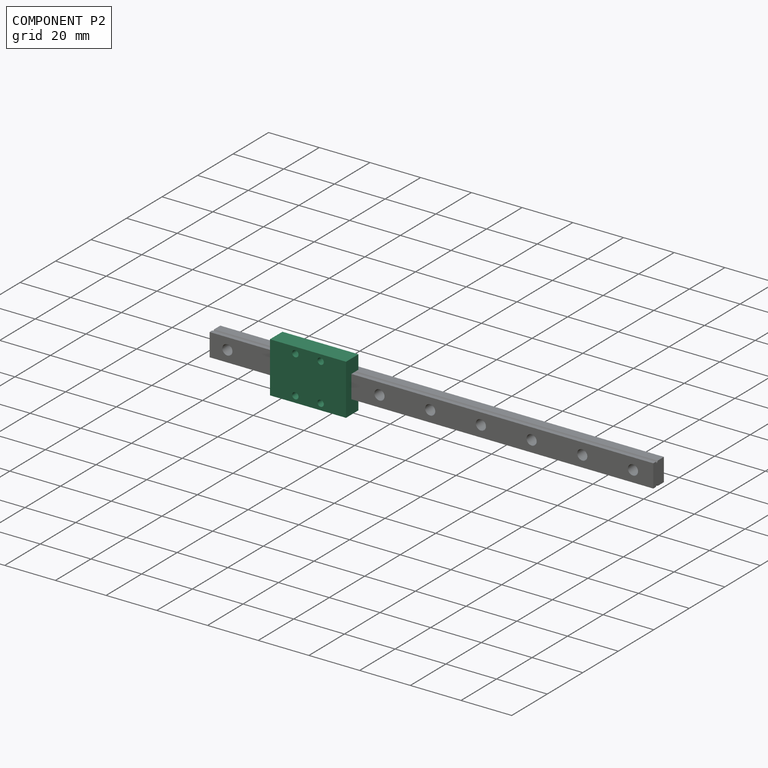
[diagram: component P2 — assembled]
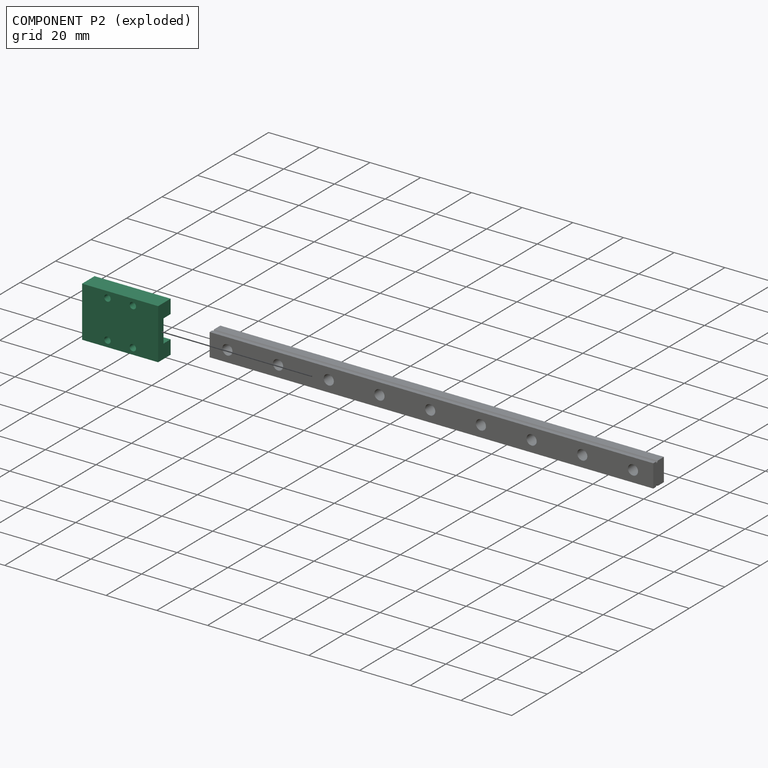
[diagram: component P2 — exploded]
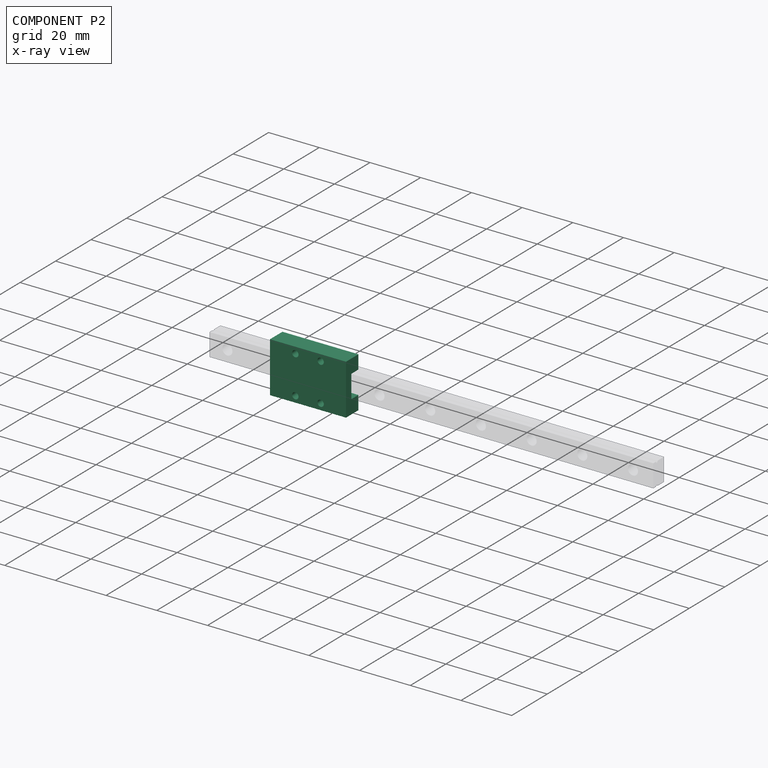
[diagram: component P2 — x-ray view]
COMPONENT P2 — recipe-attached (CADFS 00915666, mesh-verified: the recipe's output STEP matches this component's geometry to below the mesh-comparison resolution (tessellation chordal tolerance ~0.0551 mm)).
Held by: PLANAR mate "Planar 1" to P3; SLIDER mate "Slider 1" to P3.
Construction recipe (FeatureScript — the CAD program that rebuilds this solid; sketch coordinates are in the units given by the * unit suffixes, e.g. mm):

FeatureScript 1511;
import(path : "onshape/std/geometry.fs", version : "1511.0");
import(path : "onshape/std/common.fs", version : "1511.0");
const mm = millimeter;
const VERTEX = EntityType.VERTEX;
const EDGE = EntityType.EDGE;
const FACE = EntityType.FACE;
const BODY = EntityType.BODY;
function v(x, y){return vector(x, y);}
function OD(order){return orderDisambiguation(order);}
function OSD(set){return originalSetDisambiguation(set);}
function TD(topology){return topologyDisambiguation(topology);}
function TDD(query){return trueDependencyDisambiguation(query);}
function sQuery(a, b, c) {return sketchEntityQuery(a, b, c);}

annotation { "Feature Type Name" : "Feature", "Feature Type Description" : "" }
export const myFeature = defineFeature(function(context is Context, id is Id, definition is map)
    precondition{}
    {
        {
            var Q0;
            Q0=qCreatedBy(makeId("Top.planeOp"),FACE);
            var sketch = newSketch(context, id + "F0", { "sketchPlane" : qUnion([Q0])});
            skLineSegment(sketch, "E0.bottom", {"start": v(-15, 10) * mm, "end": v(15, 10) * mm});
            skLineSegment(sketch, "E0.top", {"start": v(-15, -10) * mm, "end": v(15, -10) * mm});
            skLineSegment(sketch, "E0.left", {"start": v(-15, 10) * mm, "end": v(-15, -10) * mm});
            skLineSegment(sketch, "E0.right", {"start": v(15, 10) * mm, "end": v(15, -10) * mm});
            skSolve(sketch);
        }
        {
            var Q0;
            Q0 = qSketchRegion(id + "F0", true);
            extrude(context, id + "F1", {"entities" : qUnion([Q0]), "depth" : 7 * mm, "offsetDistance" : 25 * mm});
        }
        {
            var Q0;
            Q0=makeQuery(id+"F1.opExtrude","CAP_FACE",FACE,{"disambiguationData":[OSD([sQuery(id+"F0.wireOp",EDGE,"E0.bottom"),sQuery(id+"F0.wireOp",EDGE,"E0.top"),sQuery(id+"F0.wireOp",EDGE,"E0.left"),sQuery(id+"F0.wireOp",EDGE,"E0.right")])],"isStart":false});
            var sketch = newSketch(context, id + "F2", { "sketchPlane" : qUnion([Q0])});
            skLineSegment(sketch, "E1.bottom", {"start": v(-5, 7.5) * mm, "end": v(5, 7.5) * mm, "construction": true});
            skLineSegment(sketch, "E1.top", {"start": v(-5, -7.5) * mm, "end": v(5, -7.5) * mm, "construction": true});
            skLineSegment(sketch, "E1.left", {"start": v(-5, 7.5) * mm, "end": v(-5, -7.5) * mm, "construction": true});
            skLineSegment(sketch, "E1.right", {"start": v(5, 7.5) * mm, "end": v(5, -7.5) * mm, "construction": true});
            skCircle(sketch, "E2", {"center": v(5, 7.5) * mm, "radius": 1.25 * mm});
            skCircle(sketch, "E3", {"center": v(-5, 7.5) * mm, "radius": 1.25 * mm});
            skCircle(sketch, "E4", {"center": v(-5, -7.5) * mm, "radius": 1.25 * mm});
            skCircle(sketch, "E5", {"center": v(5, -7.5) * mm, "radius": 1.25 * mm});
            skSolve(sketch);
        }
        {
            var Q0;
            Q0 = qSketchRegion(id + "F2", true);
            extrude(context, id + "F3", {"entities" : qUnion([Q0]), "operationType" : NewBodyOperationType.REMOVE, "oppositeDirection" : true, "depth" : 4 * mm, "offsetDistance" : 25 * mm});
        }
        {
            var Q0;
            Q0=makeQuery(id+"F1.opExtrude","CAP_FACE",FACE,{"disambiguationData":[OSD([sQuery(id+"F0.wireOp",EDGE,"E0.bottom"),sQuery(id+"F0.wireOp",EDGE,"E0.top"),sQuery(id+"F0.wireOp",EDGE,"E0.left"),sQuery(id+"F0.wireOp",EDGE,"E0.right")])],"isStart":true});
            var sketch = newSketch(context, id + "F4", { "sketchPlane" : qUnion([Q0])});
            skLineSegment(sketch, "E6.bottom", {"start": v(-15, 4.5) * mm, "end": v(15, 4.5) * mm});
            skLineSegment(sketch, "E6.top", {"start": v(-15, -4.5) * mm, "end": v(15, -4.5) * mm});
            skLineSegment(sketch, "E6.left", {"start": v(-15, 4.5) * mm, "end": v(-15, -4.5) * mm});
            skLineSegment(sketch, "E6.right", {"start": v(15, 4.5) * mm, "end": v(15, -4.5) * mm});
            skSolve(sketch);
        }
        {
            var Q0;
            Q0 = qSketchRegion(id + "F4", true);
            extrude(context, id + "F5", {"entities" : qUnion([Q0]), "operationType" : NewBodyOperationType.REMOVE, "oppositeDirection" : true, "depth" : 4 * mm, "offsetDistance" : 25 * mm});
        }
    });
PROVENANCE & LICENSES
Assembly (occurrences, transforms, mates, per-part STEP geometry): AutoMate dataset, Zenodo record 7776208, CC0.
Construction recipes: CADFS (HuggingFace VladPyatov/CADFS, CC-BY-4.0, layered over the ABC dataset), FeatureScript reconstruction programs keyed by ABC model id.
Join: ABC meta listings map ABC model id -> Onshape documentId; within a shared document, parts are matched by geometric signature (bounding-box dims + volume at 0.1% relative tolerance, exact B-rep face/solid counts).
Verification: 6 of this assembly's 8 components carry a recipe attachment, and every attachment is mesh-verified: the CADFS STEP and the AutoMate member STEP were compared as meshes in their shared local frame (symmetric sampled-point-to-mesh distance); worst across the 6 attachments: below the mesh-comparison resolution (tessellation chordal tolerance ~0.497 mm) on a 331 mm part.
Renders: orthographic iso camera (az 35 / el 25); the floor grid conveys scale (grid pitch printed in each image; no ruler). In the exploded view each component is displaced by its stored offset vector: the offsets alone carry the explosion direction (mate normal/axis signs are not orientation cues and do not encode it), and separation distances are assigned per mate-chain, not proportionally to assembly-order depth.
